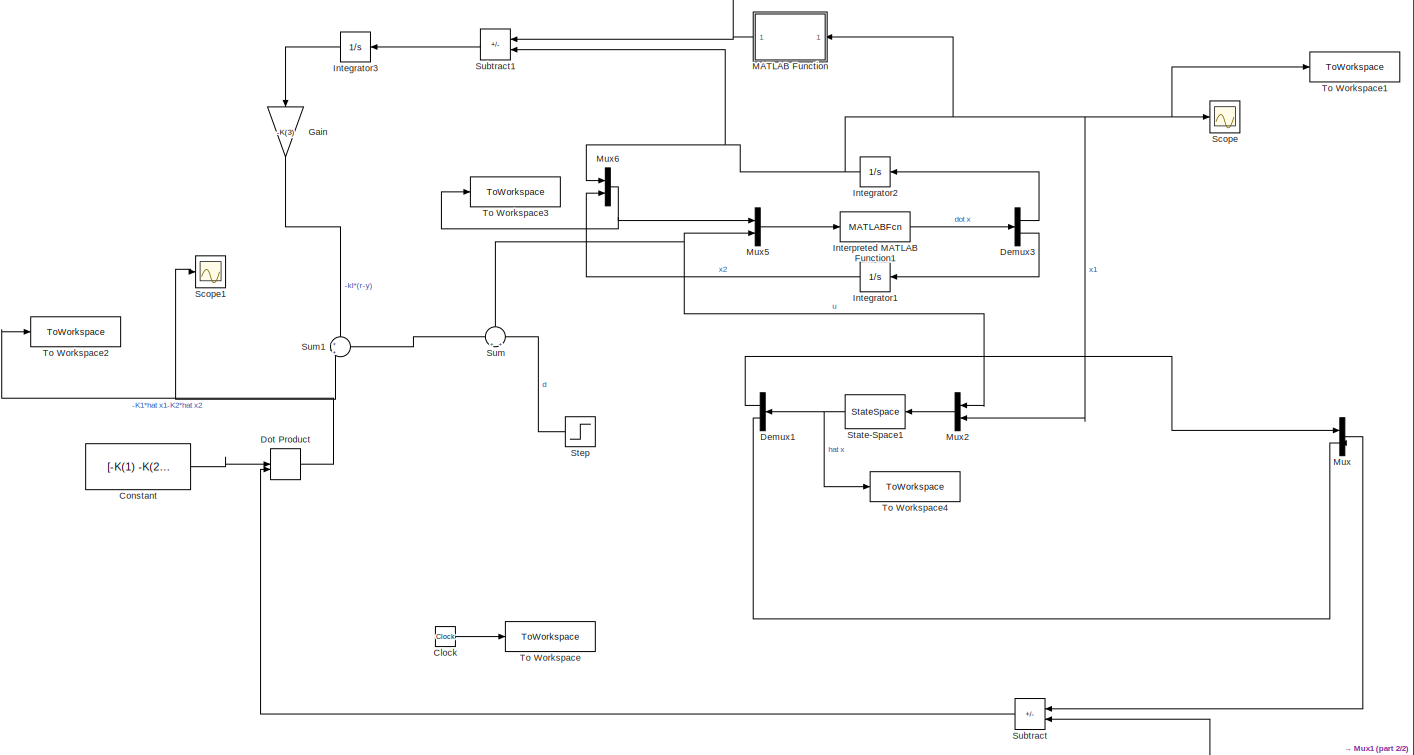
[diagram: root canvas - part 1/2, most of the canvas]
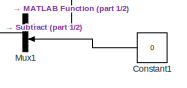
[diagram: root canvas - part 2/2, bottom right region]
MODEL slx_7d7178519f2e
KIND model
CONFIG AbsTol = 1e-20
CONFIG EnableMultiTasking = off
CONFIG FixedStep = auto
CONFIG MaxStep = auto
CONFIG MinStep = auto
CONFIG RelTol = 1e-14
CONFIG SampleTimeConstraint = Unconstrained
CONFIG SolverName = VariableStepAuto
CONFIG StartTime = 0.0
CONFIG StopTime = 20
BLOCK [Clock] Clock
BLOCK [Constant] Constant
  Value = [-K(1) -K(2)]
BLOCK [Constant] Constant1
  NameLocation = top
  Value = 0
BLOCK [Demux] Demux1
  NameLocation = top
  Outputs = 2
BLOCK [Demux] Demux3
  Outputs = 2
BLOCK [DotProduct] Dot Product
  OutDataTypeStr = Inherit: Inherit via internal rule
BLOCK [Gain] Gain
  Gain = -K(3)
  NameLocation = left
BLOCK [Integrator] Integrator1
  NameLocation = top
BLOCK [Integrator] Integrator2
  NameLocation = top
BLOCK [Integrator] Integrator3
  NameLocation = top
BLOCK [MATLABFcn] Interpreted MATLAB Function1
  MATLABFcn = function_WP1
  OutputDimensions = 2
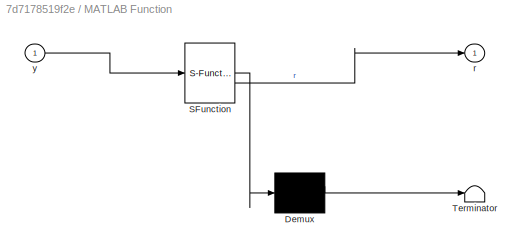
BLOCK [SubSystem] MATLAB Function
  ErrorFcn = Stateflow.Translate.translate
  NameLocation = top
  PermitHierarchicalResolution = ExplicitOnly
  SFBlockType = MATLAB Function
  TreatAsAtomicUnit = on
BLOCK [Demux] MATLAB Function/ Demux 
  Outputs = 1
BLOCK [S-Function] MATLAB Function/ SFunction 
  EnableBusSupport = on
  FunctionName = sf_sfun
  PortCounts = [1 2]
  SFcnIsStateOwnerBlock = off
  SFunctionDeploymentMode = off
  Tag = Stateflow S-Function 2
BLOCK [Terminator] MATLAB Function/ Terminator 
BLOCK [Outport] MATLAB Function/r
BLOCK [Inport] MATLAB Function/y
BLOCK [Mux] Mux
  DisplayOption = bar
  Inputs = 2
BLOCK [Mux] Mux1
  DisplayOption = bar
  Inputs = 2
  NameLocation = top
BLOCK [Mux] Mux2
  DisplayOption = bar
  Inputs = 2
  NameLocation = top
BLOCK [Mux] Mux5
  DisplayOption = bar
  Inputs = 2
BLOCK [Mux] Mux6
  DisplayOption = bar
  Inputs = 2
BLOCK [Scope] Scope
  Floating = off
  NumInputPorts = 1
  ScopeSpecificationString = Simulink.scopes.TimeScopeBlockCfg('CurrentConfiguration', extmgr.ConfigurationSet(extmgr.Configuration('Core','General UI',true),extmgr.Configuration('Core','Source UI',true),extmgr.Configuration('Sources','WiredSimulink',true,'DataLoggingVariableName','ScopeData1'),extmgr.Configuration('Visuals','Time Domain',true,'SerializedDisplays',{struct('MinYLimReal','-0.38443','MaxYLimReal','3.45986','YLab...<+1443ch>
BLOCK [Scope] Scope1
  Floating = off
  NumInputPorts = 1
  ScopeSpecificationString = Simulink.scopes.TimeScopeBlockCfg('CurrentConfiguration', extmgr.ConfigurationSet(extmgr.Configuration('Core','General UI',true),extmgr.Configuration('Core','Source UI',true),extmgr.Configuration('Sources','WiredSimulink',true,'DataLoggingVariableName','ScopeData2'),extmgr.Configuration('Visuals','Time Domain',true,'SerializedDisplays',{struct('MinYLimReal','-86.75689','MaxYLimReal','330.94395','Y...<+1428ch>
BLOCK [StateSpace] State-Space1
  A = A-L*C
  B = [B L]
  C = eye(2)
  D = [0 0; 0 0]
  InitialCondition = [0 0]
  NameLocation = top
BLOCK [Step] Step
  After = Disturbo
  NameLocation = top
  SampleTime = 0
  Time = 5
BLOCK [Sum] Subtract
  IconShape = rectangular
  Inputs = +-
  NameLocation = top
BLOCK [Sum] Subtract1
  IconShape = rectangular
  Inputs = +-
  NameLocation = top
BLOCK [Sum] Sum
  Inputs = +|+
  NameLocation = right
BLOCK [Sum] Sum1
  Inputs = +|+
BLOCK [ToWorkspace] To Workspace
  FixptAsFi = on
  MaxDataPoints = inf
  SampleTime = -1
  VariableName = t
BLOCK [ToWorkspace] To Workspace1
  FixptAsFi = on
  MaxDataPoints = inf
  SampleTime = -1
  VariableName = y
BLOCK [ToWorkspace] To Workspace2
  FixptAsFi = on
  MaxDataPoints = inf
  SampleTime = -1
  VariableName = u
BLOCK [ToWorkspace] To Workspace3
  FixptAsFi = on
  MaxDataPoints = inf
  SampleTime = -1
  VariableName = x
BLOCK [ToWorkspace] To Workspace4
  FixptAsFi = on
  MaxDataPoints = inf
  SampleTime = -1
  VariableName = xhat
LINE Clock:1 -> To Workspace:1
LINE Constant1:1 -> Mux1:2
LINE Constant:1 -> Dot Product:1
LINE Demux1:1 -> Mux:1
LINE Demux1:2 -> Mux:2
LINE Demux3:1 -> Integrator2:1
LINE Demux3:2 -> Integrator1:1
NET Dot Product:1 -> Scope1:1, Sum1:2, To Workspace2:1
LINE Gain:1 -> Sum1:1
LINE Integrator1:1 -> Mux6:2
NET Integrator2:1 -> MATLAB Function:1, Mux2:2, Mux6:1, Scope:1, Subtract1:2, To Workspace1:1
LINE Integrator3:1 -> Gain:1
LINE Interpreted MATLAB Function1:1 -> Demux3:1
NET MATLAB Function:1 -> Mux1:1, Subtract1:1
LINE Mux1:1 -> Subtract:2
LINE Mux2:1 -> State-Space1:1
LINE Mux5:1 -> Interpreted MATLAB Function1:1
NET Mux6:1 -> Mux5:1, To Workspace3:1
LINE Mux:1 -> Subtract:1
NET State-Space1:1 -> Demux1:1, To Workspace4:1
LINE Step:1 -> Sum:2
LINE Subtract1:1 -> Integrator3:1
LINE Subtract:1 -> Dot Product:2
LINE Sum1:1 -> Sum:1
NET Sum:1 -> Mux2:1, Mux5:2
note: NET lines group one-source signal fan-out (src -> all destinations, sorted); 1:1 wires keep LINE
CHART MATLAB Function states=1 transitions=1
  STATE_LABEL 'eML_blk_kernel()'
  STATE_LABEL 'SCRIPT:\nfunction r = fcn(y)\n    if(y==0)\n        r=pi;\n    else\n        r=fix(y/(2*pi))*2*pi + pi*sign(y);\n    end\nend\n\n\n'
CHART  states=0 transitions=0
